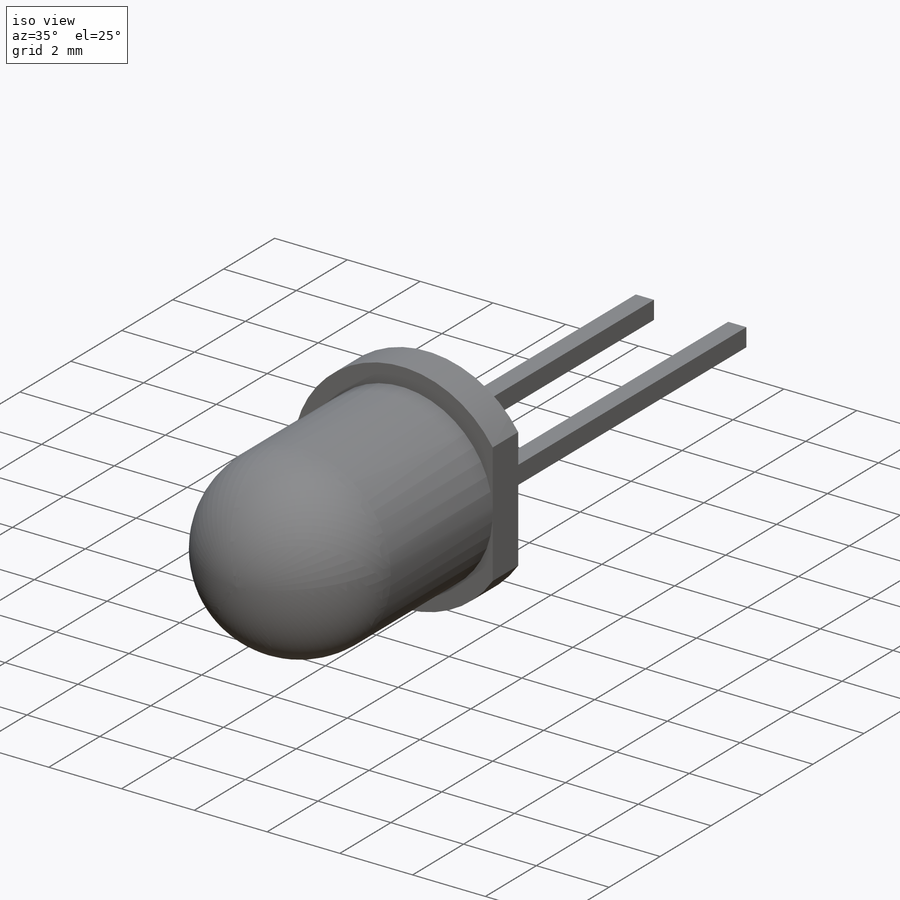
[diagram: iso view]
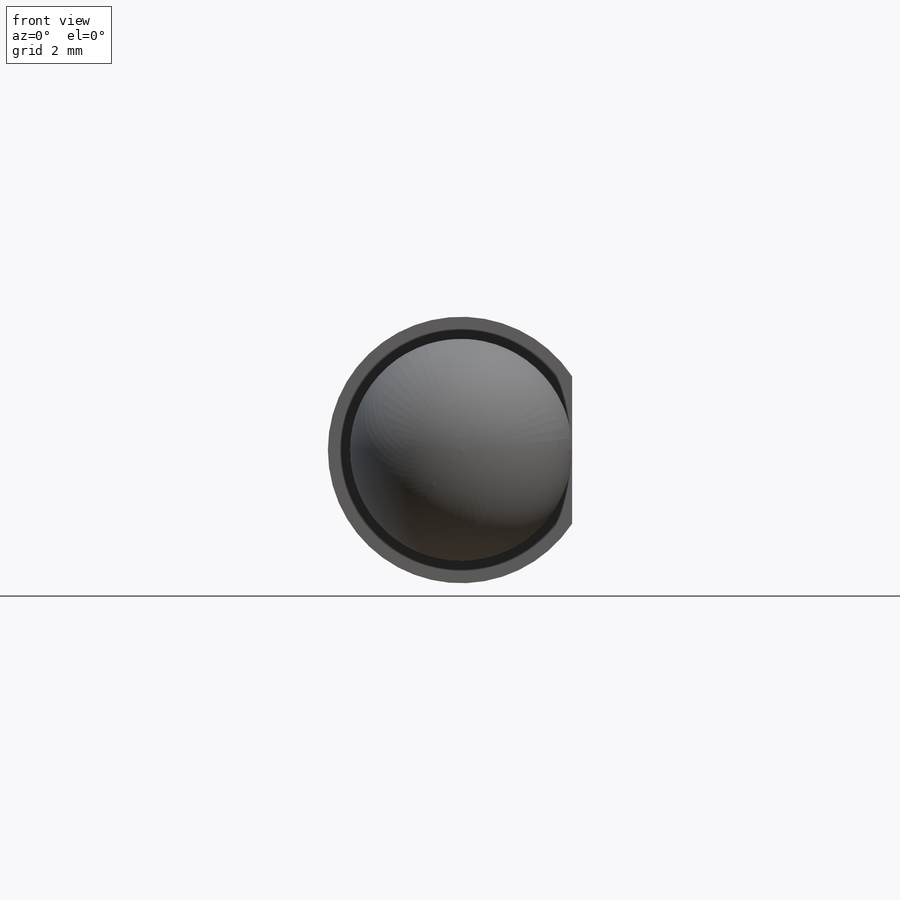
[diagram: front view]
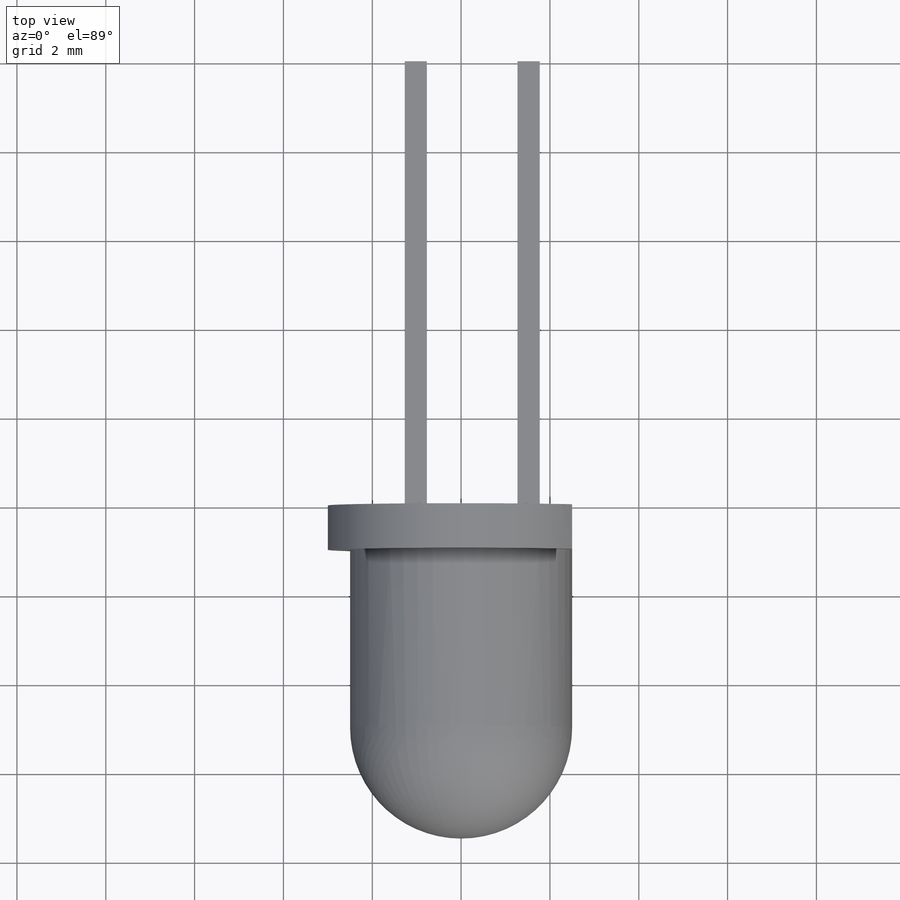
[diagram: top view]
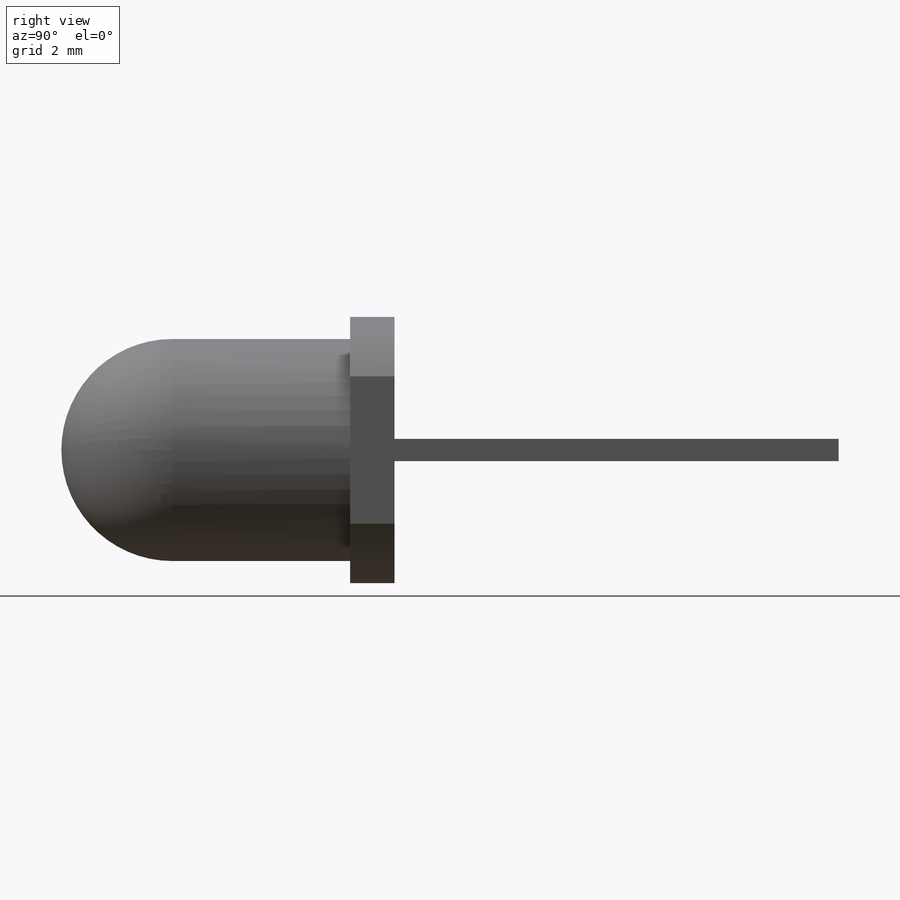
[diagram: right view]
SOLIDWORKS PART (.sldprt)
format: sldprt  version: not decoded by parser v0  size: 285,696 bytes
history: native  units: mm
features: sketch x10, sheet_metal_op x3, extrude x2, plane x2, material x1, dome x1, cut_extrude x1 + 2 further entries (+11 scaffold rows collapsed; 1 parser-record rows omitted)
feature tree (34):
  scaffold x11  (default folders/planes/origin — collapsed)
  material  "Matériau <non spécifié>"
  sketch  "Sketch1"  dims[D1=6.0mm]
  extrude  "Boss-Extrude1"  Depth=1mm
  sketch  "Sketch2"  dims[D1=5.0mm]
  extrude  "Boss-Extrude2"  Depth=4mm
  dome  "Dome1"
  sketch  "Sketch3"
  cut_extrude  "Cut-Extrude1"  [1 undecoded]
  plane  "Plane3"
  sketch  "Sketch8"  dims[D1=10.0mm D2=1.27mm]
  sheet_metal_op  "Sheet-Metal1"
  sheet_metal_op  "Base-Flange1"
  sketch  "Sketch9"  dims[c1.D1=1.27mm c1.Sheet-Metal2=0.0 c2.D1=0.1mm c2.D2=500.0mm c2.D3=0.0mm c2.D7=0.5mm c2.D6=500.0mm]
  sheet_metal_op  "Base-Flange2"
  sketch  "Sketch10"
  plane  "Plane4"
  "Flat-Pattern1"
  sketch  "Bend-Lines1"
  sketch  "Bounding-Box1"
  parser-record x1  (decoder bookkeeping rows leaked as tree rows — omitted from the tree; the rows remain in map.json)
  "Flat-Pattern2"
  sketch  "Bend-Lines2"
  sketch  "Bounding-Box2"
decode coverage: 6 of 17 modeling features carry decoded parameters; 2 rows unclassified (native names shown)
note: 1 parameter value undecoded
note: suppression state not decoded; provenance and decode notes live in map.json
